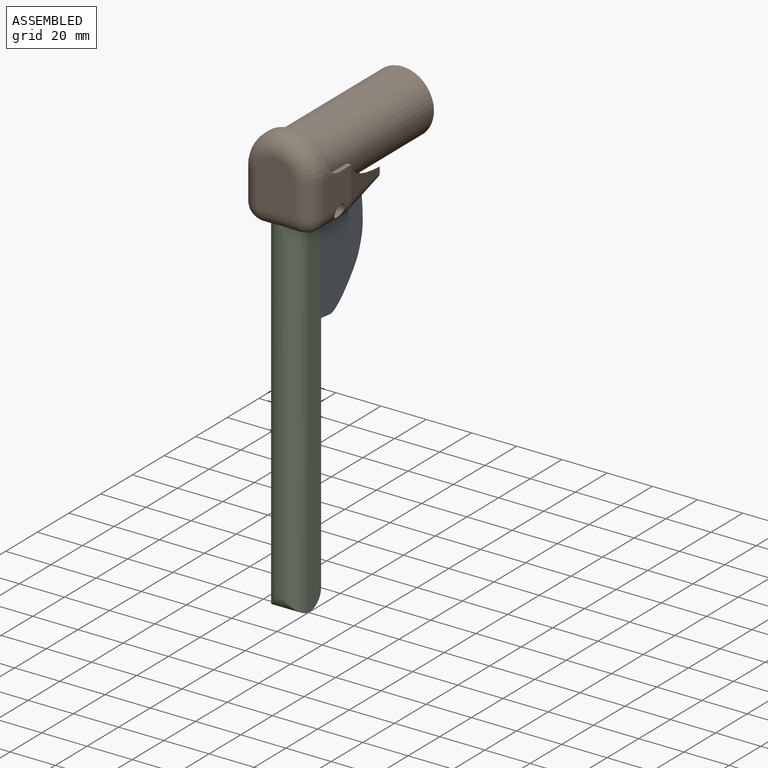
[diagram: assembled view]
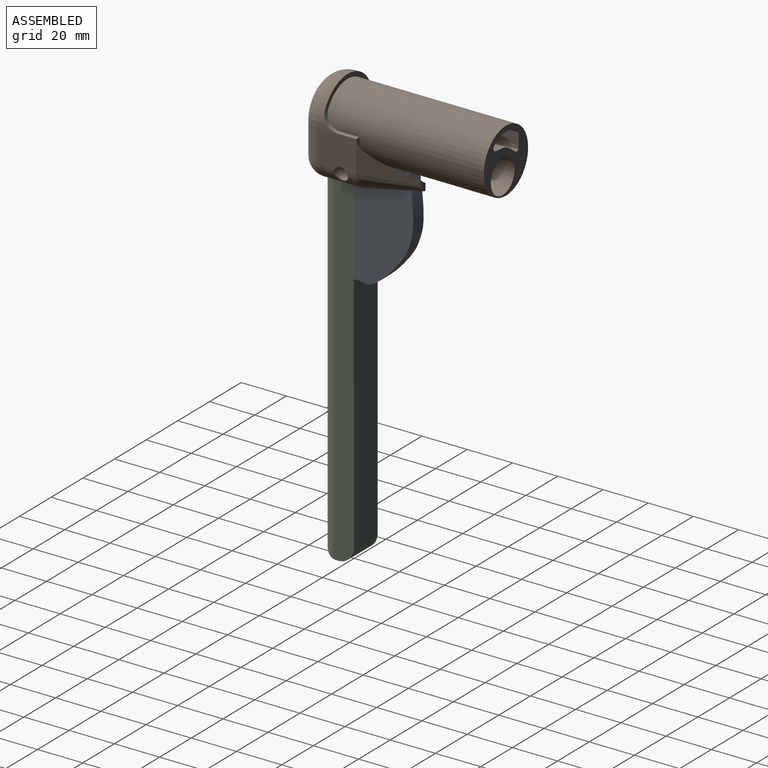
[diagram: assembled view, second angle]
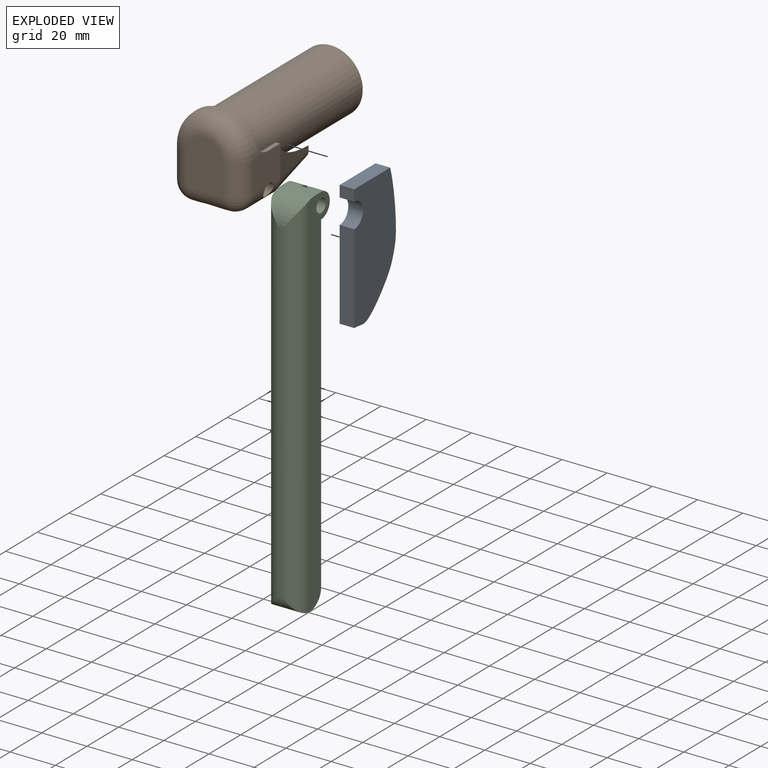
[diagram: exploded view]
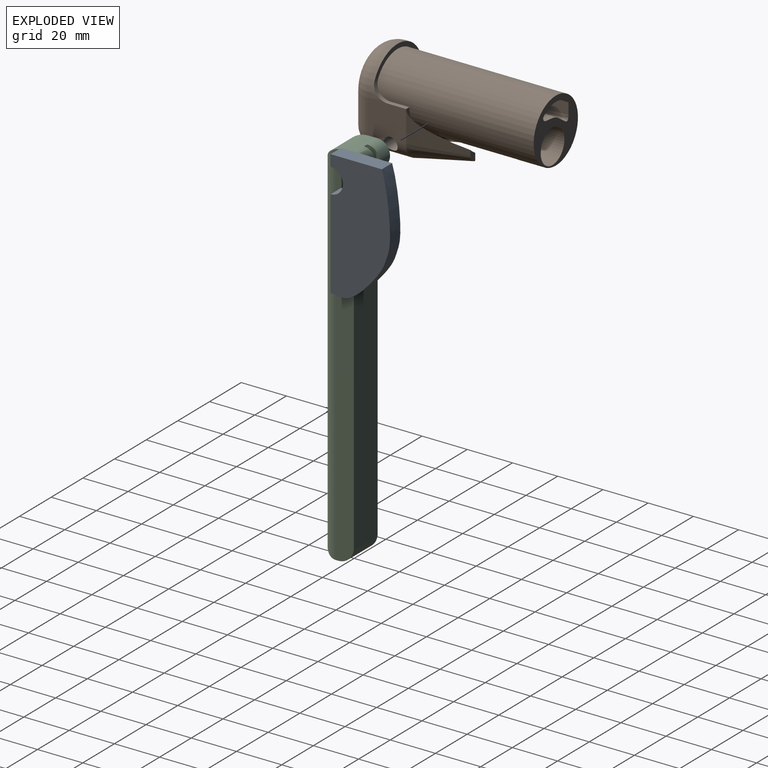
[diagram: exploded view, second angle]
ASSEMBLY  parts=3 mates=2
PART A: 7 faces, bbox 6.5x26.9x56.6 mm
  f0: cylinder r=5.5mm len=11mm, axis (-1,0,0), area 112.1mm2, adj f1,f4,f5,f6
  f1: plane 6.5x5mm, normal (0,1,0), area 32.5mm2, adj f0,f2,f5,f6
  f2: plane 22.69x6.5mm, normal (0,0,1), area 147.5mm2, adj f1,f3,f5,f6
  f3: extruded ~56.01x26.29mm, area 458.9mm2, adj f2,f4,f5,f6
  f4: plane 39.5x6.5mm, normal (0,1,0), area 256.7mm2, adj f0,f3,f5,f6
  f5: plane 56.57x26.89mm, normal (1,0,0), area 1215mm2, adj f0,f1,f2,f3,f4
  f6: plane 56.57x26.89mm, normal (-1,0,0), area 1215mm2, adj f0,f1,f2,f3,f4
PART B: 55 faces, bbox 34.6x80x39.3 mm
  f0: plane 6.07x5.91mm, normal (0,-1,0), area 15.4mm2, adj f32,f33,f47,f48,f52,f53
  f1: plane 0.07x0.06mm, normal (0,-1,0), area 0mm2, adj f3,f32,f52
  f2: plane 13.86x8mm, normal (0,1,0), area 30.2mm2, adj f4,f10,f17,f41
  f3: cylinder r=11.5mm len=26mm, axis (0,1,0), area 132mm2, adj f1,f13,f32,f52,f54
  f4: plane 58x31.63mm, normal (-1,0,0), area 906.1mm2, adj f2,f8,f10,f12,f27,f28,f29,f32
  f5: plane 28x28mm, normal (0,1,0), area 342.8mm2, adj f10,f12,f13,f32,f33
  f6: cylinder r=8mm len=16mm, axis (1,0,0), area 138mm2, adj f8,f9,f16,f24,f26,f30,f35,f36
  f7: cylinder r=3mm len=8mm, axis (-1,0,0), area 140.1mm2, adj f9,f13,f19
  f8: cylinder r=8mm len=17.44mm, axis (0,1,0), area 187.1mm2, adj f4,f6,f20,f24,f27,f36,f44
  f9: cylinder r=8mm len=17.44mm, axis (0,-1,0), area 187.1mm2, adj f6,f7,f13,f19,f26,f35,f45
  f10: cylinder r=14mm len=70mm, axis (0,1,0), area 5077.4mm2, adj f2,f4,f5,f11,f17,f18,f21,f37
  f11: plane 28.78x9mm, normal (0,1,0), area 65.1mm2, adj f10,f15,f37,f38
  f12: cylinder r=11.5mm len=70mm, axis (0,1,0), area 1172.7mm2, adj f4,f5,f13,f14,f28,f29,f31,f33
  f13: plane 70x31.63mm, normal (1,0,0), area 1106.8mm2, adj f3,f5,f7,f9,f12,f21,f29,f31
  f14: plane 12.57x1.87mm, normal (0,1,0), area 15.9mm2, adj f12,f29
  f15: cylinder r=16mm len=32mm, axis (0,-1,0), area 121.7mm2, adj f11,f19,f20,f23,f37,f38
  f16: plane 22x16mm, normal (0,-1,0), area 324.5mm2, adj f6,f22,f23,f25
  f17: plane 8x2mm, normal (0,0,1), area 16mm2, adj f2,f10,f20,f37
  f18: plane 8x2mm, normal (0,0,1), area 16mm2, adj f10,f19,f21,f38
  f19: plane 17x14mm, normal (-1,0,0), area 234.9mm2, adj f7,f9,f15,f18,f25,f46
  f20: plane 17x14mm, normal (1,0,0), area 234.9mm2, adj f8,f15,f17,f22,f27,f43
  f21: plane 13.86x8mm, normal (0,1,0), area 30.2mm2, adj f10,f13,f18,f39
  f22: cylinder r=8mm len=14mm, axis (0,0,1), area 175.9mm2, adj f16,f20,f23,f24
  f23: torus R=8mm, axis (0,-1,0), area 516.9mm2, adj f15,f16,f22,f25
  f24: sphere r=8mm, area 100.5mm2, adj f6,f8,f22
  f25: cylinder r=8mm len=14mm, axis (0,0,-1), area 175.9mm2, adj f16,f19,f23,f26
  f26: sphere r=8mm, area 100.5mm2, adj f6,f9,f25
  f27: cylinder r=3mm len=8mm, axis (-1,0,0), area 140.1mm2, adj f4,f8,f20
  f28: plane 1.71x1.37mm, normal (0,-1,0), area 1.1mm2, adj f4,f12,f29
  f29: plane 22x16mm, normal (0,0,-1), area 142.4mm2, adj f4,f12,f13,f14,f28,f30,f31,f35
  f30: plane 29.88x2mm, normal (0,1,0), area 59.8mm2, adj f6,f29,f35,f36
  f31: plane 1.71x1.37mm, normal (0,-1,0), area 1.1mm2, adj f12,f13,f29
  f32: cylinder r=7.5mm len=60mm, axis (0,1,0), area 1435.1mm2, adj f0,f1,f3,f4,f5,f34,f47,f49
  f33: extruded ~34x16mm, area 609.4mm2, adj f0,f5,f12,f13,f52,f53
  f34: plane 9.1x1.54mm, normal (0,1,0), area 9.5mm2, adj f4,f32
  f35: cylinder r=7mm len=31.63mm, axis (0,0,1), area 340mm2, adj f6,f9,f13,f29,f30
  f36: cylinder r=7mm len=31.63mm, axis (0,0,-1), area 340mm2, adj f4,f6,f8,f29,f30
  f37: cylinder r=7mm len=7mm, axis (-1,0,0), area 22.6mm2, adj f10,f11,f15,f17
  f38: cylinder r=7mm len=7mm, axis (-1,0,0), area 22.6mm2, adj f10,f11,f15,f18
  f39: cylinder r=16mm len=25mm, axis (0,-1,0), area 204.6mm2, adj f13,f21,f40,f46
  f40: plane 5.38x3mm, normal (0,1,0), area 10.6mm2, adj f13,f39,f45,f46
  f41: cylinder r=16mm len=25mm, axis (0,-1,0), area 204.6mm2, adj f2,f4,f42,f43
  f42: plane 5.38x3mm, normal (0,1,0), area 10.6mm2, adj f4,f41,f43,f44
  f43: plane 25x14mm, normal (0.98,0.2,0), area 152.3mm2, adj f20,f41,f42,f44
  f44: cone r=8mm half-angle=11.3deg, axis (0,-1,0), area 220.3mm2, adj f4,f8,f42,f43
  f45: cone r=3mm half-angle=11.3deg, axis (0,-1,0), area 220.3mm2, adj f9,f13,f40,f46
  f46: plane 25x14mm, normal (-0.98,0.2,0), area 152.3mm2, adj f19,f39,f40,f45
  f47: plane 17x2.28mm, normal (1,0,0), area 38.8mm2, adj f0,f32,f48,f49
  f48: plane 22x8mm, normal (0,0,-1), area 141.4mm2, adj f0,f4,f47,f49,f53
  f49: plane 8x4.95mm, normal (0,-1,0), area 21.5mm2, adj f4,f32,f47,f48
  f50: plane 8x3.95mm, normal (0,-1,0), area 7mm2, adj f4,f10,f32,f51
  f51: plane 35x1.28mm, normal (1,0,0), area 44.8mm2, adj f10,f32,f50,f54
  f52: cylinder r=5mm len=14.64mm, axis (0,0,-1), area 70.3mm2, adj f0,f1,f3,f13,f32,f33
  f53: cylinder r=5mm len=5mm, axis (0,0,1), area 20mm2, adj f0,f4,f33,f48
  f54: plane 8x8mm, normal (0.71,-0.71,0), area 27.8mm2, adj f3,f10,f13,f32,f51
PART C: 24 faces, bbox 15x20.5x165 mm
  f0: cylinder r=5.5mm len=15mm, axis (-1,0,0), area 231mm2, adj f4,f5,f8,f9,f20,f21,f23
  f1: cylinder r=3mm len=15mm, axis (-1,0,0), area 273mm2, adj f8,f9,f20,f21,f22,f23
  f2: plane 3.5x1mm, normal (0,0,-1), area 3.5mm2, adj f8,f11,f15,f18
  f3: plane 3.5x1mm, normal (0,0,-1), area 3.5mm2, adj f9,f13,f15,f18
  f4: plane 15x4mm, normal (0,0,1), area 59.8mm2, adj f0,f7,f8,f9,f19,f20,f21
  f5: plane 147x15mm, normal (0,-1,0), area 2205mm2, adj f0,f8,f9,f15
  f6: plane 147x1mm, normal (0,1,0), area 147mm2, adj f7,f16,f17,f18
  f7: cylinder r=11mm len=15mm, axis (-1,0,0), area 190mm2, adj f4,f6,f8,f9,f16,f17
  f8: plane 165x13.5mm, normal (1,0,0), area 1327.7mm2, adj f0,f1,f2,f4,f5,f7,f15,f16
  f9: plane 165x13.5mm, normal (-1,0,0), area 1327.7mm2, adj f0,f1,f3,f4,f5,f7,f15,f17
  f10: plane 149.06x8mm, normal (0,-1,0), area 1192.5mm2, adj f11,f13,f14,f18
  f11: plane 150x8mm, normal (-1,0,0), area 1197.9mm2, adj f2,f10,f12,f14,f15,f18
  f12: plane 149.06x8mm, normal (0,1,0), area 1192.5mm2, adj f11,f13,f14,f15
  f13: plane 150x8mm, normal (1,0,0), area 1197.9mm2, adj f3,f10,f12,f14,f15,f18
  f14: plane 8x8mm, normal (0,0,-1), area 58mm2, adj f10,f11,f12,f13,f19,f20,f21,f22
  f15: cylinder r=7mm len=15mm, axis (1,0,0), area 135.6mm2, adj f2,f3,f5,f8,f9,f11,f12,f13
  f16: cylinder r=7mm len=164.25mm, axis (0,0,-1), area 1730.9mm2, adj f6,f7,f8,f18
  f17: cylinder r=7mm len=164.25mm, axis (0,0,1), area 1730.9mm2, adj f6,f7,f9,f18
  f18: cylinder r=7mm len=15mm, axis (-1,0,0), area 79.7mm2, adj f2,f3,f6,f10,f11,f13,f16,f17
  f19: extruded ~15x8.79mm, area 38.5mm2, adj f4,f14,f20,f21
  f20: plane 15.36x14.5mm, normal (-1,0,0), area 71.9mm2, adj f0,f1,f4,f14,f19,f22,f23
  f21: plane 15.36x14.5mm, normal (1,0,0), area 71.9mm2, adj f0,f1,f4,f14,f19,f22,f23
  f22: extruded ~12.5x5.77mm, area 30.1mm2, adj f1,f14,f20,f21
  f23: plane 4.61x2mm, normal (0,-1,0), area 9.2mm2, adj f0,f1,f20,f21
PLACE A rot(axis=(0,0,1),180deg) t=(-28.47,-61.77,16.73)mm
PLACE B t=(-32.72,0.27,32.73)mm fixed
PLACE C rot(axis=(0,0,1),180deg) t=(-32.72,-69.23,-47.77)mm
MATE fastened A.f6 <-> C.f9  axis (1,0,0) through (-25.22,-61.73,11.23)mm
MATE revolute C.f0 <-> B.f7  axis (1,0,0) through (-25.22,-61.73,16.73)mm
